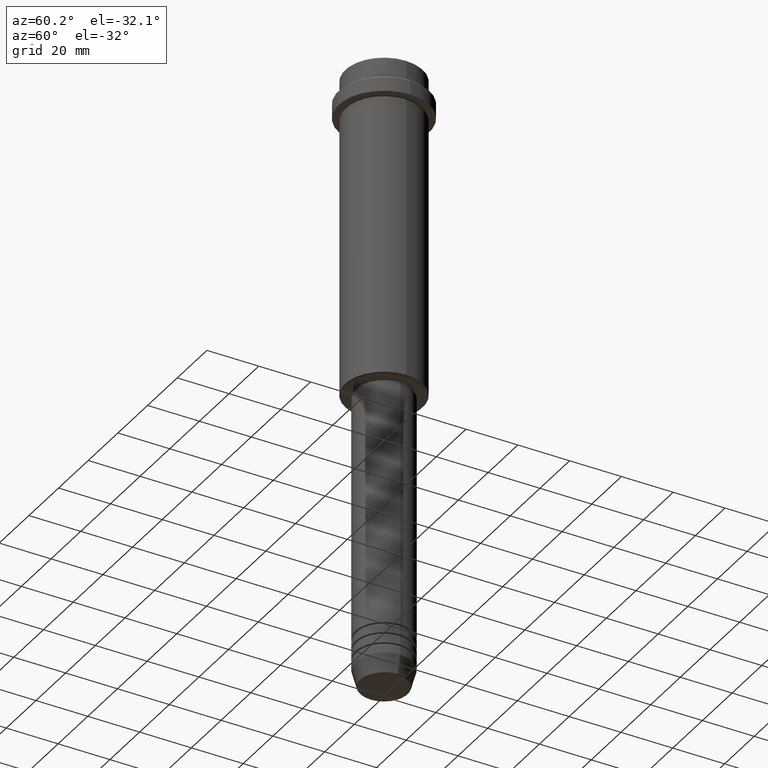
[diagram: clean part render]
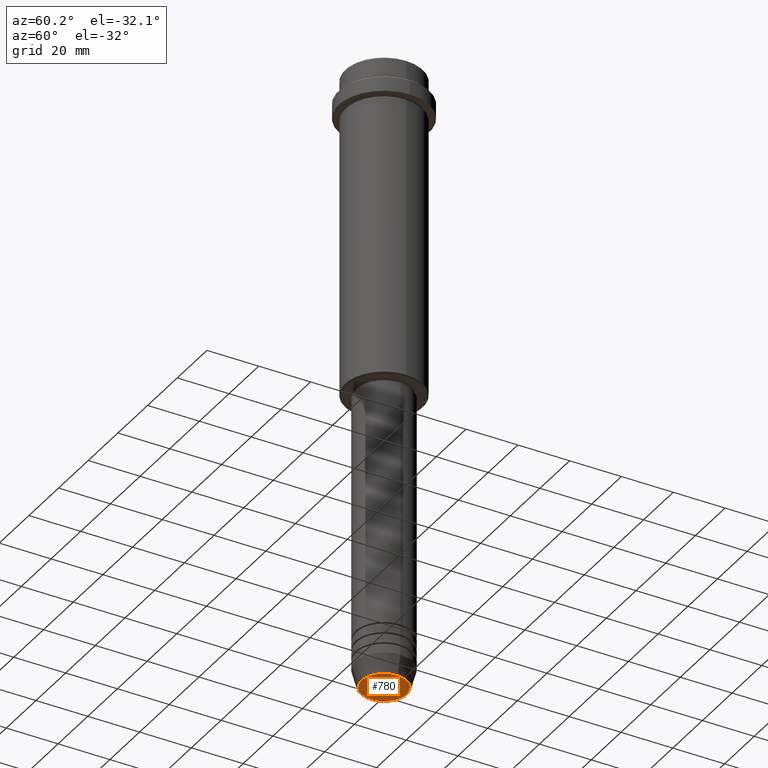
[diagram: same view with one face highlighted and labeled with its STEP entity id]
A machine part, auxiliary view. The second image highlights one B-rep face of the part: STEP entity #780.
In plain terms, the highlighted planar face has unit normal (0, -0, 1).
Its self-contained STEP definition (entity closure, byte-faithful):
#2 = CIRCLE ( 'NONE', #1299, 8.740692158992656502 ) ;
#17 = EDGE_CURVE ( 'NONE', #166, #868, #2, .T. ) ;
#40 = ORIENTED_EDGE ( 'NONE', *, *, #1385, .T. ) ;
#49 = AXIS2_PLACEMENT_3D ( 'NONE', #1139, #1253, #946 ) ;
#166 = VERTEX_POINT ( 'NONE', #481 ) ;
#222 = DIRECTION ( 'NONE',  ( 1.000000000000000000, 0.000000000000000000, 0.000000000000000000 ) ) ;
#478 = EDGE_LOOP ( 'NONE', ( #1272, #40 ) ) ;
#481 = CARTESIAN_POINT ( 'NONE',  ( 8.740692158992656502, 0.000000000000000000, -240.0000000000000000 ) ) ;
#780 = ADVANCED_FACE ( 'NONE', ( #818 ), #834, .F. ) ;
#818 = FACE_OUTER_BOUND ( 'NONE', #478, .T. ) ;
#834 = PLANE ( 'NONE',  #49 ) ;
#858 = DIRECTION ( 'NONE',  ( 0.000000000000000000, 0.000000000000000000, -1.000000000000000000 ) ) ;
#868 = VERTEX_POINT ( 'NONE', #979 ) ;
#946 = DIRECTION ( 'NONE',  ( 1.000000000000000000, 0.000000000000000000, 0.000000000000000000 ) ) ;
#979 = CARTESIAN_POINT ( 'NONE',  ( -8.740692158992656502, 1.099999016768739653E-15, -240.0000000000000000 ) ) ;
#1002 = AXIS2_PLACEMENT_3D ( 'NONE', #1200, #1417, #1189 ) ;
#1139 = CARTESIAN_POINT ( 'NONE',  ( 0.000000000000000000, 0.000000000000000000, -240.0000000000000000 ) ) ;
#1189 = DIRECTION ( 'NONE',  ( 1.000000000000000000, 0.000000000000000000, 0.000000000000000000 ) ) ;
#1200 = CARTESIAN_POINT ( 'NONE',  ( 0.000000000000000000, 0.000000000000000000, -240.0000000000000000 ) ) ;
#1253 = DIRECTION ( 'NONE',  ( 0.000000000000000000, -0.000000000000000000, 1.000000000000000000 ) ) ;
#1272 = ORIENTED_EDGE ( 'NONE', *, *, #17, .T. ) ;
#1299 = AXIS2_PLACEMENT_3D ( 'NONE', #1313, #858, #222 ) ;
#1309 = CIRCLE ( 'NONE', #1002, 8.740692158992656502 ) ;
#1313 = CARTESIAN_POINT ( 'NONE',  ( 0.000000000000000000, 0.000000000000000000, -240.0000000000000000 ) ) ;
#1385 = EDGE_CURVE ( 'NONE', #868, #166, #1309, .T. ) ;
#1417 = DIRECTION ( 'NONE',  ( 0.000000000000000000, 0.000000000000000000, -1.000000000000000000 ) ) ;